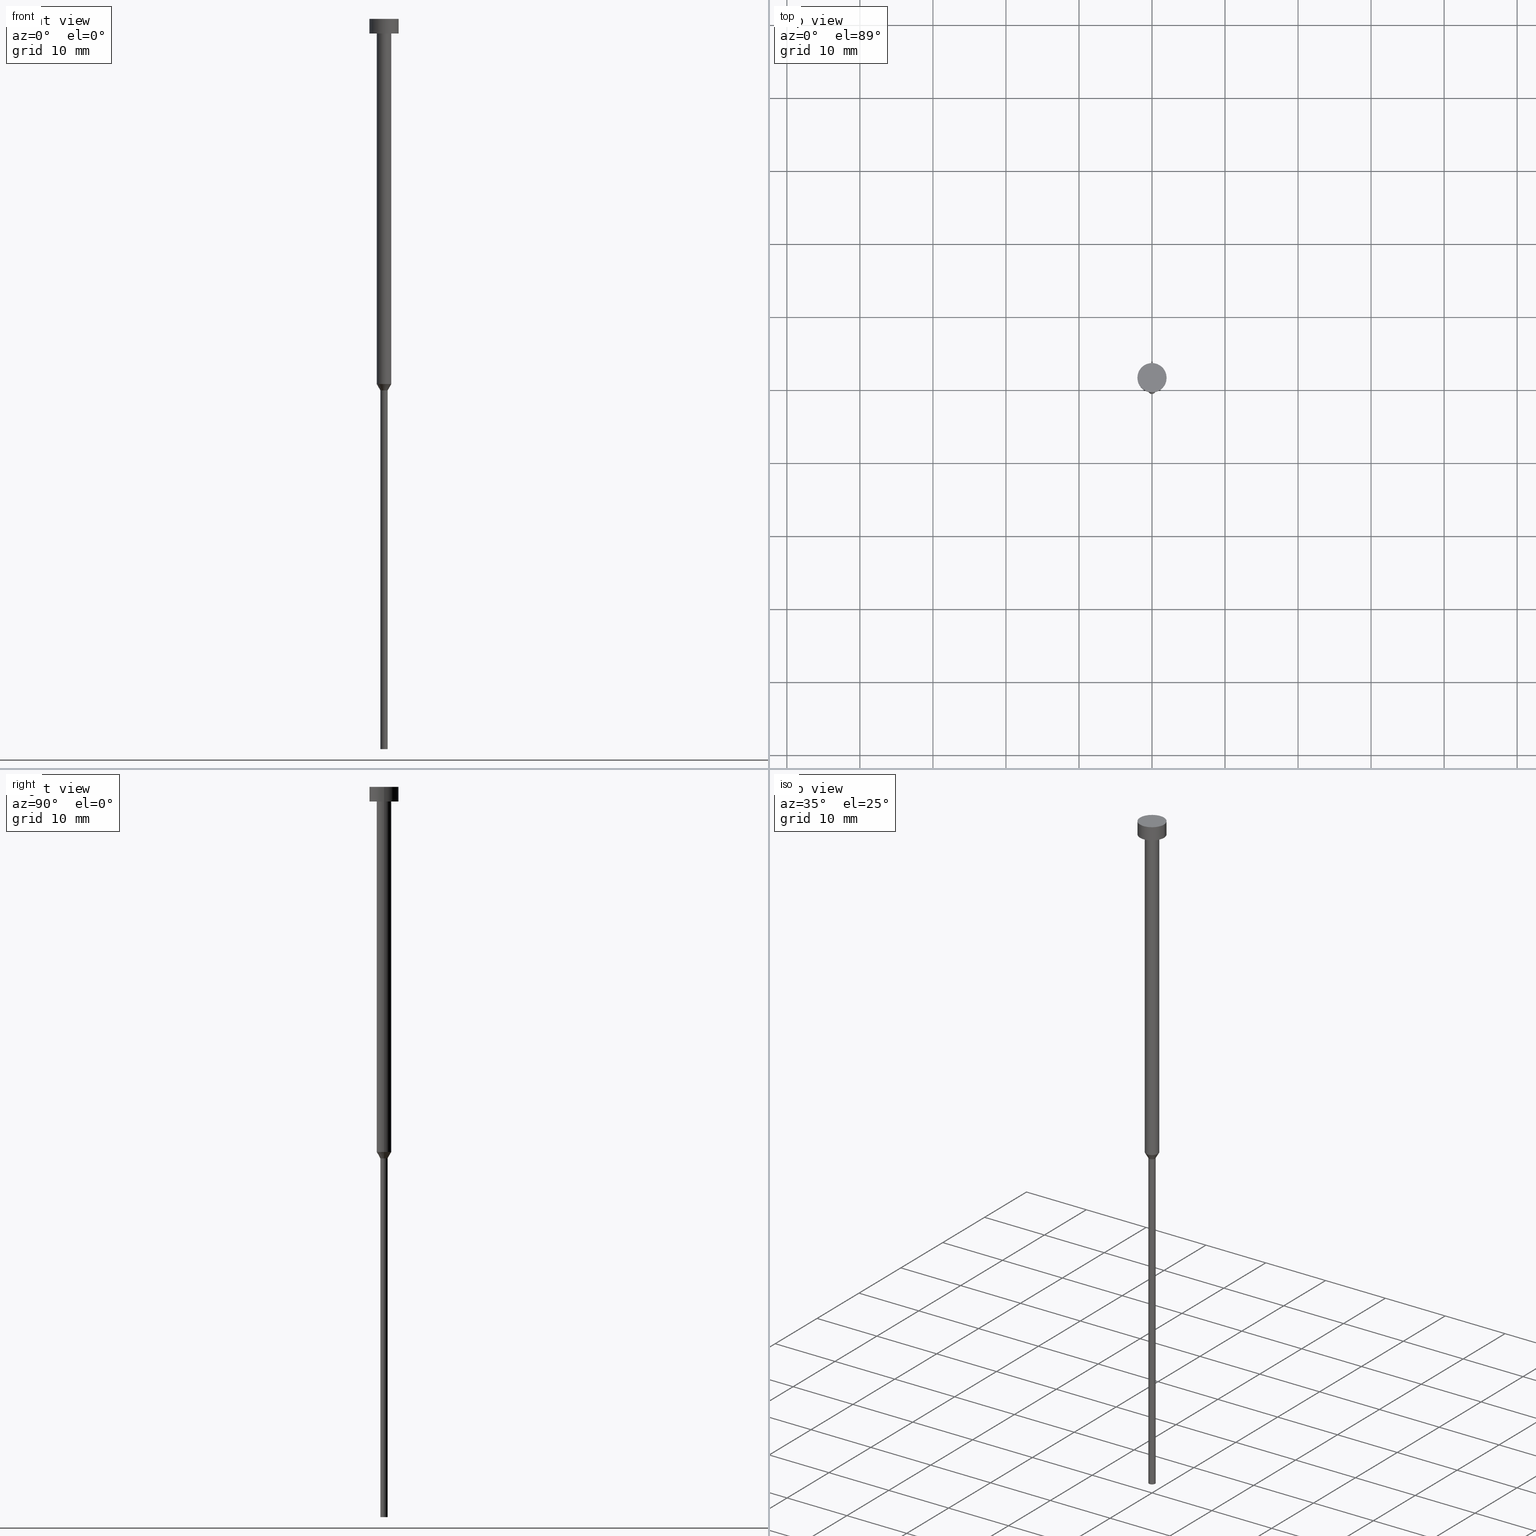
[diagram: canonical four-view strip — front | top / right | iso, engineering-drawing reading convention]
A machine part, canonical four-view strip (front | top / right | iso — engineering-drawing reading convention). The complete STEP part file that produces these views, byte-faithful:
ISO-10303-21;
HEADER;
FILE_DESCRIPTION (( 'STEP AP203' ),
    '1' );
FILE_NAME ('4fe4.STEP',
    '2023-02-13T12:41:08',
    ( '' ),
    ( '' ),
    'SwSTEP 2.0',
    'SolidWorks 2019',
    '' );
FILE_SCHEMA (( 'CONFIG_CONTROL_DESIGN' ));
ENDSEC;

DATA;
#1 =( NAMED_UNIT ( * ) PLANE_ANGLE_UNIT ( ) SI_UNIT ( $, .RADIAN. ) );
#2 = CIRCLE ( 'NONE', #113, 1.000000000000003109 ) ;
#3 = CARTESIAN_POINT ( 'NONE',  ( 0.000000000000000000, 0.000000000000000000, -2.000000000000000444 ) ) ;
#4 = DIRECTION ( 'NONE',  ( 1.000000000000000000, 0.000000000000000000, 0.000000000000000000 ) ) ;
#5 = PERSON_AND_ORGANIZATION ( #53, #118 ) ;
#6 = CARTESIAN_POINT ( 'NONE',  ( -0.5000000000000000000, 6.123233995736766036E-17, -50.86602540378444814 ) ) ;
#7 = DATE_AND_TIME ( #329, #82 ) ;
#8 = EDGE_CURVE ( 'NONE', #125, #93, #2, .T. ) ;
#9 = FACE_OUTER_BOUND ( 'NONE', #156, .T. ) ;
#10 = DIRECTION ( 'NONE',  ( -0.000000000000000000, -0.000000000000000000, 1.000000000000000000 ) ) ;
#11 = EDGE_CURVE ( 'NONE', #203, #93, #208, .T. ) ;
#12 = CIRCLE ( 'NONE', #80, 1.000000000000003553 ) ;
#13 = ORIENTED_EDGE ( 'NONE', *, *, #94, .T. ) ;
#14 = DIRECTION ( 'NONE',  ( 0.000000000000000000, 0.000000000000000000, -1.000000000000000000 ) ) ;
#15 = EDGE_CURVE ( 'NONE', #203, #196, #254, .T. ) ;
#16 = ORIENTED_EDGE ( 'NONE', *, *, #115, .F. ) ;
#17 = DIRECTION ( 'NONE',  ( 1.000000000000000000, 0.000000000000000000, 0.000000000000000000 ) ) ;
#18 = DIRECTION ( 'NONE',  ( -1.000000000000000000, 0.000000000000000000, -0.000000000000000000 ) ) ;
#19 = CARTESIAN_POINT ( 'NONE',  ( -1.000000000000003553, 1.224646799147357398E-16, -2.000000000000000444 ) ) ;
#20 = AXIS2_PLACEMENT_3D ( 'NONE', #157, #270, #22 ) ;
#21 = VERTEX_POINT ( 'NONE', #297 ) ;
#22 = DIRECTION ( 'NONE',  ( 1.000000000000000000, 0.000000000000000000, 0.000000000000000000 ) ) ;
#23 = DIRECTION ( 'NONE',  ( 1.000000000000000000, 0.000000000000000000, 0.000000000000000000 ) ) ;
#24 = CARTESIAN_POINT ( 'NONE',  ( 0.000000000000000000, 0.000000000000000000, -2.000000000000000444 ) ) ;
#25 = DIRECTION ( 'NONE',  ( 1.000000000000000000, 0.000000000000000000, 0.000000000000000000 ) ) ;
#26 = PERSON_AND_ORGANIZATION ( #53, #118 ) ;
#27 = DIRECTION ( 'NONE',  ( -0.000000000000000000, -0.000000000000000000, 1.000000000000000000 ) ) ;
#28 = CARTESIAN_POINT ( 'NONE',  ( 0.000000000000000000, 0.000000000000000000, -100.0000000000000000 ) ) ;
#29 = DATE_TIME_ROLE ( 'creation_date' ) ;
#30 = EDGE_CURVE ( 'NONE', #289, #340, #164, .T. ) ;
#31 = COORDINATED_UNIVERSAL_TIME_OFFSET ( 1, 0, .AHEAD. ) ;
#32 = FACE_OUTER_BOUND ( 'NONE', #299, .T. ) ;
#33 = VECTOR ( 'NONE', #10, 1000.000000000000000 ) ;
#34 = PRODUCT_DEFINITION ( 'NEZN�M�', '', #92, #121 ) ;
#35 = EDGE_LOOP ( 'NONE', ( #16, #13, #272, #348 ) ) ;
#36 = APPROVAL_PERSON_ORGANIZATION ( #163, #51, #166 ) ;
#37 = APPROVAL_DATE_TIME ( #174, #277 ) ;
#38 = ORIENTED_EDGE ( 'NONE', *, *, #152, .T. ) ;
#39 = CARTESIAN_POINT ( 'NONE',  ( 0.000000000000000000, 0.000000000000000000, 0.000000000000000000 ) ) ;
#40 = PRODUCT_RELATED_PRODUCT_CATEGORY ( 'detail', '', ( #141 ) ) ;
#41 = AXIS2_PLACEMENT_3D ( 'NONE', #304, #57, #151 ) ;
#42 = AXIS2_PLACEMENT_3D ( 'NONE', #230, #147, #23 ) ;
#43 = UNCERTAINTY_MEASURE_WITH_UNIT (LENGTH_MEASURE( 1.000000000000000082E-05 ), #107, 'distance_accuracy_value', 'NONE');
#44 = EDGE_CURVE ( 'NONE', #70, #289, #175, .T. ) ;
#45 = EDGE_LOOP ( 'NONE', ( #38, #48 ) ) ;
#46 = AXIS2_PLACEMENT_3D ( 'NONE', #135, #74, #81 ) ;
#47 = DIRECTION ( 'NONE',  ( -0.000000000000000000, -0.000000000000000000, 1.000000000000000000 ) ) ;
#48 = ORIENTED_EDGE ( 'NONE', *, *, #170, .T. ) ;
#49 = CARTESIAN_POINT ( 'NONE',  ( -2.000000000000000000, 2.449293598294706414E-16, 0.000000000000000000 ) ) ;
#50 = LINE ( 'NONE', #247, #290 ) ;
#51 = APPROVAL ( #105, 'NEUR�EN�' ) ;
#52 = PERSON_AND_ORGANIZATION_ROLE ( 'design_supplier' ) ;
#53 = PERSON ( 'NEUR�EN�', 'NEUR�EN�', 'NEUR�EN�', ('NEUR�EN�'), ('NEUR�EN�'), ('NEUR�EN�') ) ;
#54 = CIRCLE ( 'NONE', #64, 1.000000000000003553 ) ;
#55 = CARTESIAN_POINT ( 'NONE',  ( 0.000000000000000000, 0.000000000000000000, -2.449293598294705921E-16 ) ) ;
#56 = DIRECTION ( 'NONE',  ( 0.000000000000000000, 0.000000000000000000, -1.000000000000000000 ) ) ;
#57 = DIRECTION ( 'NONE',  ( -0.000000000000000000, -0.000000000000000000, 1.000000000000000000 ) ) ;
#58 = DIRECTION ( 'NONE',  ( 1.000000000000000000, 0.000000000000000000, 0.000000000000000000 ) ) ;
#59 = CIRCLE ( 'NONE', #260, 0.5000000000000000000 ) ;
#60 = CIRCLE ( 'NONE', #256, 0.5000000000000000000 ) ;
#61 = COORDINATED_UNIVERSAL_TIME_OFFSET ( 1, 0, .AHEAD. ) ;
#62 = ORIENTED_EDGE ( 'NONE', *, *, #8, .T. ) ;
#63 = CALENDAR_DATE ( 2023, 13, 2 ) ;
#64 = AXIS2_PLACEMENT_3D ( 'NONE', #3, #111, #86 ) ;
#65 = EDGE_CURVE ( 'NONE', #125, #321, #302, .T. ) ;
#66 = ORIENTED_EDGE ( 'NONE', *, *, #246, .T. ) ;
#67 = AXIS2_PLACEMENT_3D ( 'NONE', #237, #14, #18 ) ;
#68 = SHAPE_DEFINITION_REPRESENTATION ( #139, #344 ) ;
#69 = CC_DESIGN_PERSON_AND_ORGANIZATION_ASSIGNMENT ( #146, #257, ( #34 ) ) ;
#70 = VERTEX_POINT ( 'NONE', #134 ) ;
#71 = ORIENTED_EDGE ( 'NONE', *, *, #65, .F. ) ;
#72 = CALENDAR_DATE ( 2023, 13, 2 ) ;
#73 = CIRCLE ( 'NONE', #41, 1.000000000000003109 ) ;
#74 = DIRECTION ( 'NONE',  ( 0.000000000000000000, -0.000000000000000000, 1.000000000000000000 ) ) ;
#75 = LINE ( 'NONE', #353, #343 ) ;
#76 = EDGE_LOOP ( 'NONE', ( #241, #263, #316, #342 ) ) ;
#77 = EDGE_CURVE ( 'NONE', #21, #196, #176, .T. ) ;
#78 = PLANE ( 'NONE',  #158 ) ;
#79 = DATE_AND_TIME ( #283, #291 ) ;
#80 = AXIS2_PLACEMENT_3D ( 'NONE', #349, #100, #286 ) ;
#81 = DIRECTION ( 'NONE',  ( 1.000000000000000000, 0.000000000000000000, 0.000000000000000000 ) ) ;
#82 = LOCAL_TIME ( 13, 41, 8.000000000000000000, #31 ) ;
#83 = CC_DESIGN_PERSON_AND_ORGANIZATION_ASSIGNMENT ( #142, #226, ( #141 ) ) ;
#84 = DIRECTION ( 'NONE',  ( 1.000000000000000000, 0.000000000000000000, 0.000000000000000000 ) ) ;
#85 = MANIFOLD_SOLID_BREP ( 'Rotovat1', #280 ) ;
#86 = DIRECTION ( 'NONE',  ( 1.000000000000000000, 0.000000000000000000, 0.000000000000000000 ) ) ;
#87 = PERSON_AND_ORGANIZATION ( #53, #118 ) ;
#88 = CIRCLE ( 'NONE', #20, 2.000000000000000000 ) ;
#89 = ADVANCED_FACE ( 'NONE', ( #225 ), #199, .T. ) ;
#90 = APPROVAL_STATUS ( 'not_yet_approved' ) ;
#91 = LINE ( 'NONE', #307, #224 ) ;
#92 = PRODUCT_DEFINITION_FORMATION_WITH_SPECIFIED_SOURCE ( 'LIBOVOLN�', '', #141, .NOT_KNOWN. ) ;
#93 = VERTEX_POINT ( 'NONE', #191 ) ;
#94 = EDGE_CURVE ( 'NONE', #93, #125, #73, .T. ) ;
#95 = ORIENTED_EDGE ( 'NONE', *, *, #246, .F. ) ;
#96 = VERTEX_POINT ( 'NONE', #264 ) ;
#97 = APPROVAL_PERSON_ORGANIZATION ( #98, #102, #206 ) ;
#98 = PERSON_AND_ORGANIZATION ( #53, #118 ) ;
#99 = DIRECTION ( 'NONE',  ( 1.000000000000000000, 0.000000000000000000, 0.000000000000000000 ) ) ;
#100 = DIRECTION ( 'NONE',  ( -0.000000000000000000, -0.000000000000000000, 1.000000000000000000 ) ) ;
#101 = VERTEX_POINT ( 'NONE', #19 ) ;
#102 = APPROVAL ( #137, 'NEUR�EN�' ) ;
#103 = CIRCLE ( 'NONE', #219, 0.5000000000000000000 ) ;
#104 = LOCAL_TIME ( 13, 41, 8.000000000000000000, #324 ) ;
#105 = APPROVAL_STATUS ( 'not_yet_approved' ) ;
#106 = LINE ( 'NONE', #218, #33 ) ;
#107 =( LENGTH_UNIT ( ) NAMED_UNIT ( * ) SI_UNIT ( .MILLI., .METRE. ) );
#108 = CARTESIAN_POINT ( 'NONE',  ( 0.000000000000000000, 0.000000000000000000, -100.0000000000000000 ) ) ;
#109 = CONICAL_SURFACE ( 'NONE', #312, 1.000000000000003109, 0.5235987755982994818 ) ;
#110 = CARTESIAN_POINT ( 'NONE',  ( 0.000000000000000000, 0.000000000000000000, 0.000000000000000000 ) ) ;
#111 = DIRECTION ( 'NONE',  ( -0.000000000000000000, -0.000000000000000000, 1.000000000000000000 ) ) ;
#112 = EDGE_CURVE ( 'NONE', #289, #70, #144, .T. ) ;
#113 = AXIS2_PLACEMENT_3D ( 'NONE', #281, #351, #99 ) ;
#114 = APPLICATION_PROTOCOL_DEFINITION ( 'international standard', 'config_control_design', 1994, #228 ) ;
#115 = EDGE_CURVE ( 'NONE', #93, #101, #75, .T. ) ;
#116 = EDGE_LOOP ( 'NONE', ( #311, #327 ) ) ;
#117 = CYLINDRICAL_SURFACE ( 'NONE', #42, 0.5000000000000000000 ) ;
#118 = ORGANIZATION ( 'NEUR�EN�', 'NEUR�EN�', '' ) ;
#119 = ORIENTED_EDGE ( 'NONE', *, *, #233, .T. ) ;
#120 = ORIENTED_EDGE ( 'NONE', *, *, #112, .T. ) ;
#121 = DESIGN_CONTEXT ( 'detailed design', #228, 'design' ) ;
#122 = FACE_OUTER_BOUND ( 'NONE', #238, .T. ) ;
#123 = ADVANCED_FACE ( 'NONE', ( #301 ), #232, .T. ) ;
#124 = AXIS2_PLACEMENT_3D ( 'NONE', #240, #153, #17 ) ;
#125 = VERTEX_POINT ( 'NONE', #204 ) ;
#126 = ORIENTED_EDGE ( 'NONE', *, *, #350, .T. ) ;
#127 = CARTESIAN_POINT ( 'NONE',  ( 0.000000000000000000, 0.000000000000000000, -50.86602540378444814 ) ) ;
#128 = ORIENTED_EDGE ( 'NONE', *, *, #8, .F. ) ;
#129 = CARTESIAN_POINT ( 'NONE',  ( 0.000000000000000000, 0.000000000000000000, 0.000000000000000000 ) ) ;
#130 = PERSON_AND_ORGANIZATION_ROLE ( 'creator' ) ;
#131 = DIRECTION ( 'NONE',  ( -0.000000000000000000, -0.000000000000000000, 1.000000000000000000 ) ) ;
#132 = CARTESIAN_POINT ( 'NONE',  ( 0.000000000000000000, 0.000000000000000000, -50.00000000000000000 ) ) ;
#133 = ORIENTED_EDGE ( 'NONE', *, *, #140, .T. ) ;
#134 = CARTESIAN_POINT ( 'NONE',  ( 2.000000000000000000, 0.000000000000000000, -2.000000000000000444 ) ) ;
#135 = CARTESIAN_POINT ( 'NONE',  ( 0.000000000000000000, 0.000000000000000000, -1.224646799147352961E-16 ) ) ;
#136 = DIRECTION ( 'NONE',  ( 1.000000000000000000, 0.000000000000000000, 0.000000000000000000 ) ) ;
#137 = APPROVAL_STATUS ( 'not_yet_approved' ) ;
#138 = VECTOR ( 'NONE', #27, 1000.000000000000000 ) ;
#139 = PRODUCT_DEFINITION_SHAPE ( 'NONE', 'NONE',  #34 ) ;
#140 = EDGE_CURVE ( 'NONE', #340, #273, #88, .T. ) ;
#141 = PRODUCT ( '4fe4', '4fe4', '', ( #338 ) ) ;
#142 = PERSON_AND_ORGANIZATION ( #53, #118 ) ;
#143 = AXIS2_PLACEMENT_3D ( 'NONE', #306, #335, #25 ) ;
#144 = CIRCLE ( 'NONE', #124, 2.000000000000000000 ) ;
#145 = EDGE_LOOP ( 'NONE', ( #119, #126, #195, #236 ) ) ;
#146 = PERSON_AND_ORGANIZATION ( #53, #118 ) ;
#147 = DIRECTION ( 'NONE',  ( -0.000000000000000000, -0.000000000000000000, 1.000000000000000000 ) ) ;
#148 = EDGE_LOOP ( 'NONE', ( #162, #323, #128, #216 ) ) ;
#149 = AXIS2_PLACEMENT_3D ( 'NONE', #110, #300, #251 ) ;
#150 = ORIENTED_EDGE ( 'NONE', *, *, #188, .T. ) ;
#151 = DIRECTION ( 'NONE',  ( 1.000000000000000000, 0.000000000000000000, 0.000000000000000000 ) ) ;
#152 = EDGE_CURVE ( 'NONE', #321, #101, #12, .T. ) ;
#153 = DIRECTION ( 'NONE',  ( -0.000000000000000000, -0.000000000000000000, 1.000000000000000000 ) ) ;
#154 = CALENDAR_DATE ( 2023, 13, 2 ) ;
#155 = ORIENTED_EDGE ( 'NONE', *, *, #115, .T. ) ;
#156 = EDGE_LOOP ( 'NONE', ( #66, #133 ) ) ;
#157 = CARTESIAN_POINT ( 'NONE',  ( 0.000000000000000000, 0.000000000000000000, -2.449293598294705921E-16 ) ) ;
#158 = AXIS2_PLACEMENT_3D ( 'NONE', #108, #56, #279 ) ;
#159 = CC_DESIGN_PERSON_AND_ORGANIZATION_ASSIGNMENT ( #248, #130, ( #92 ) ) ;
#160 = ORIENTED_EDGE ( 'NONE', *, *, #140, .F. ) ;
#161 = DIRECTION ( 'NONE',  ( -0.000000000000000000, -0.000000000000000000, 1.000000000000000000 ) ) ;
#162 = ORIENTED_EDGE ( 'NONE', *, *, #288, .T. ) ;
#163 = PERSON_AND_ORGANIZATION ( #53, #118 ) ;
#164 = LINE ( 'NONE', #49, #234 ) ;
#165 = FACE_OUTER_BOUND ( 'NONE', #148, .T. ) ;
#166 = APPROVAL_ROLE ( '' ) ;
#167 = AXIS2_PLACEMENT_3D ( 'NONE', #39, #313, #84 ) ;
#168 = COORDINATED_UNIVERSAL_TIME_OFFSET ( 1, 0, .AHEAD. ) ;
#169 = CARTESIAN_POINT ( 'NONE',  ( 0.000000000000000000, 0.000000000000000000, 0.000000000000000000 ) ) ;
#170 = EDGE_CURVE ( 'NONE', #101, #321, #54, .T. ) ;
#171 = DIRECTION ( 'NONE',  ( 0.5000000000000005551, 0.000000000000000000, 0.8660254037844382635 ) ) ;
#172 = EDGE_LOOP ( 'NONE', ( #328, #325 ) ) ;
#173 = ADVANCED_FACE ( 'NONE', ( #331 ), #346, .T. ) ;
#174 = DATE_AND_TIME ( #63, #308 ) ;
#175 = CIRCLE ( 'NONE', #319, 2.000000000000000000 ) ;
#176 = LINE ( 'NONE', #200, #212 ) ;
#177 = FACE_BOUND ( 'NONE', #45, .T. ) ;
#178 = ADVANCED_FACE ( 'NONE', ( #122 ), #336, .T. ) ;
#179 = CC_DESIGN_SECURITY_CLASSIFICATION ( #213, ( #92 ) ) ;
#180 = ORIENTED_EDGE ( 'NONE', *, *, #15, .F. ) ;
#181 = DIRECTION ( 'NONE',  ( 1.000000000000000000, 0.000000000000000000, 0.000000000000000000 ) ) ;
#182 = ORIENTED_EDGE ( 'NONE', *, *, #152, .F. ) ;
#183 = DIRECTION ( 'NONE',  ( 1.000000000000000000, 0.000000000000000000, 0.000000000000000000 ) ) ;
#184 = CARTESIAN_POINT ( 'NONE',  ( -2.000000000000000000, 2.449293598294706414E-16, -2.449293598294705921E-16 ) ) ;
#185 =( NAMED_UNIT ( * ) SI_UNIT ( $, .STERADIAN. ) SOLID_ANGLE_UNIT ( ) );
#186 = APPROVAL_DATE_TIME ( #79, #51 ) ;
#187 = CARTESIAN_POINT ( 'NONE',  ( 0.000000000000000000, 0.000000000000000000, -50.00000000000000000 ) ) ;
#188 = EDGE_CURVE ( 'NONE', #96, #21, #59, .T. ) ;
#189 = CC_DESIGN_APPROVAL ( #277, ( #34 ) ) ;
#190 = DIRECTION ( 'NONE',  ( -0.000000000000000000, -0.000000000000000000, 1.000000000000000000 ) ) ;
#191 = CARTESIAN_POINT ( 'NONE',  ( -1.000000000000003109, 1.224646799147356905E-16, -50.00000000000000000 ) ) ;
#192 = CC_DESIGN_PERSON_AND_ORGANIZATION_ASSIGNMENT ( #26, #52, ( #92 ) ) ;
#193 = VECTOR ( 'NONE', #326, 1000.000000000000114 ) ;
#194 = APPROVAL_ROLE ( '' ) ;
#195 = ORIENTED_EDGE ( 'NONE', *, *, #288, .F. ) ;
#196 = VERTEX_POINT ( 'NONE', #305 ) ;
#197 = CARTESIAN_POINT ( 'NONE',  ( 2.000000000000000000, 0.000000000000000000, -2.449293598294705921E-16 ) ) ;
#198 = AXIS2_PLACEMENT_3D ( 'NONE', #129, #211, #181 ) ;
#199 = CYLINDRICAL_SURFACE ( 'NONE', #167, 0.5000000000000000000 ) ;
#200 = CARTESIAN_POINT ( 'NONE',  ( 0.5000000000000000000, 0.000000000000000000, 0.000000000000000000 ) ) ;
#201 = DIRECTION ( 'NONE',  ( 1.000000000000000000, 0.000000000000000000, 0.000000000000000000 ) ) ;
#202 = DIRECTION ( 'NONE',  ( -0.000000000000000000, -0.000000000000000000, 1.000000000000000000 ) ) ;
#203 = VERTEX_POINT ( 'NONE', #6 ) ;
#204 = CARTESIAN_POINT ( 'NONE',  ( 1.000000000000003109, 0.000000000000000000, -50.00000000000000000 ) ) ;
#205 = CC_DESIGN_PERSON_AND_ORGANIZATION_ASSIGNMENT ( #5, #215, ( #213 ) ) ;
#206 = APPROVAL_ROLE ( '' ) ;
#207 = ORIENTED_EDGE ( 'NONE', *, *, #77, .T. ) ;
#208 = LINE ( 'NONE', #330, #193 ) ;
#209 = DATE_TIME_ROLE ( 'classification_date' ) ;
#210 = ORIENTED_EDGE ( 'NONE', *, *, #44, .T. ) ;
#211 = DIRECTION ( 'NONE',  ( -0.000000000000000000, -0.000000000000000000, 1.000000000000000000 ) ) ;
#212 = VECTOR ( 'NONE', #258, 1000.000000000000000 ) ;
#213 = SECURITY_CLASSIFICATION ( '', '', #245 ) ;
#214 = DIRECTION ( 'NONE',  ( 1.000000000000000000, 0.000000000000000000, 0.000000000000000000 ) ) ;
#215 = PERSON_AND_ORGANIZATION_ROLE ( 'classification_officer' ) ;
#216 = ORIENTED_EDGE ( 'NONE', *, *, #284, .F. ) ;
#217 = ADVANCED_FACE ( 'NONE', ( #165 ), #109, .T. ) ;
#218 = CARTESIAN_POINT ( 'NONE',  ( 2.000000000000000000, 0.000000000000000000, 0.000000000000000000 ) ) ;
#219 = AXIS2_PLACEMENT_3D ( 'NONE', #333, #253, #136 ) ;
#220 = AXIS2_PLACEMENT_3D ( 'NONE', #169, #285, #222 ) ;
#221 = PLANE ( 'NONE',  #46 ) ;
#222 = DIRECTION ( 'NONE',  ( 1.000000000000000000, 0.000000000000000000, 0.000000000000000000 ) ) ;
#223 = ORIENTED_EDGE ( 'NONE', *, *, #30, .F. ) ;
#224 = VECTOR ( 'NONE', #171, 1000.000000000000114 ) ;
#225 = FACE_OUTER_BOUND ( 'NONE', #145, .T. ) ;
#226 = PERSON_AND_ORGANIZATION_ROLE ( 'design_owner' ) ;
#227 = ORIENTED_EDGE ( 'NONE', *, *, #350, .F. ) ;
#228 = APPLICATION_CONTEXT ( 'configuration controlled 3d designs of mechanical parts and assemblies' ) ;
#229 = AXIS2_PLACEMENT_3D ( 'NONE', #55, #190, #214 ) ;
#230 = CARTESIAN_POINT ( 'NONE',  ( 0.000000000000000000, 0.000000000000000000, 0.000000000000000000 ) ) ;
#231 = CC_DESIGN_DATE_AND_TIME_ASSIGNMENT ( #314, #29, ( #34 ) ) ;
#232 = CYLINDRICAL_SURFACE ( 'NONE', #345, 1.000000000000003331 ) ;
#233 = EDGE_CURVE ( 'NONE', #21, #96, #103, .T. ) ;
#234 = VECTOR ( 'NONE', #161, 1000.000000000000000 ) ;
#235 = DIRECTION ( 'NONE',  ( 1.000000000000000000, 0.000000000000000000, 0.000000000000000000 ) ) ;
#236 = ORIENTED_EDGE ( 'NONE', *, *, #77, .F. ) ;
#237 = CARTESIAN_POINT ( 'NONE',  ( 0.000000000000000000, -2.000000000000000000, -2.000000000000000444 ) ) ;
#238 = EDGE_LOOP ( 'NONE', ( #223, #120, #347, #160 ) ) ;
#239 = ORIENTED_EDGE ( 'NONE', *, *, #265, .F. ) ;
#240 = CARTESIAN_POINT ( 'NONE',  ( 0.000000000000000000, 0.000000000000000000, -2.000000000000000444 ) ) ;
#241 = ORIENTED_EDGE ( 'NONE', *, *, #11, .F. ) ;
#242 = DIRECTION ( 'NONE',  ( -0.000000000000000000, -0.000000000000000000, 1.000000000000000000 ) ) ;
#243 = COORDINATED_UNIVERSAL_TIME_OFFSET ( 1, 0, .AHEAD. ) ;
#244 = APPROVAL_PERSON_ORGANIZATION ( #87, #277, #194 ) ;
#245 = SECURITY_CLASSIFICATION_LEVEL ( 'unclassified' ) ;
#246 = EDGE_CURVE ( 'NONE', #273, #340, #287, .T. ) ;
#247 = CARTESIAN_POINT ( 'NONE',  ( -0.5000000000000000000, 6.123233995736766036E-17, 0.000000000000000000 ) ) ;
#248 = PERSON_AND_ORGANIZATION ( #53, #118 ) ;
#249 = DIRECTION ( 'NONE',  ( -0.000000000000000000, -0.000000000000000000, 1.000000000000000000 ) ) ;
#250 = FACE_OUTER_BOUND ( 'NONE', #172, .T. ) ;
#251 = DIRECTION ( 'NONE',  ( 1.000000000000000000, 0.000000000000000000, 0.000000000000000000 ) ) ;
#252 = ADVANCED_FACE ( 'NONE', ( #250 ), #78, .T. ) ;
#253 = DIRECTION ( 'NONE',  ( -0.000000000000000000, -0.000000000000000000, 1.000000000000000000 ) ) ;
#254 = CIRCLE ( 'NONE', #295, 0.5000000000000000000 ) ;
#255 =( GEOMETRIC_REPRESENTATION_CONTEXT ( 3 ) GLOBAL_UNCERTAINTY_ASSIGNED_CONTEXT ( ( #43 ) ) GLOBAL_UNIT_ASSIGNED_CONTEXT ( ( #107, #1, #185 ) ) REPRESENTATION_CONTEXT ( 'NONE', 'WORKASPACE' ) );
#256 = AXIS2_PLACEMENT_3D ( 'NONE', #127, #317, #201 ) ;
#257 = PERSON_AND_ORGANIZATION_ROLE ( 'creator' ) ;
#258 = DIRECTION ( 'NONE',  ( -0.000000000000000000, -0.000000000000000000, 1.000000000000000000 ) ) ;
#259 = PLANE ( 'NONE',  #67 ) ;
#260 = AXIS2_PLACEMENT_3D ( 'NONE', #28, #276, #354 ) ;
#261 = CC_DESIGN_APPROVAL ( #51, ( #92 ) ) ;
#262 = CARTESIAN_POINT ( 'NONE',  ( 0.000000000000000000, 0.000000000000000000, 0.000000000000000000 ) ) ;
#263 = ORIENTED_EDGE ( 'NONE', *, *, #15, .T. ) ;
#264 = CARTESIAN_POINT ( 'NONE',  ( -0.5000000000000000000, 6.123233995736766036E-17, -100.0000000000000000 ) ) ;
#265 = EDGE_CURVE ( 'NONE', #70, #273, #106, .T. ) ;
#266 = FACE_OUTER_BOUND ( 'NONE', #116, .T. ) ;
#267 = DIRECTION ( 'NONE',  ( -0.000000000000000000, -0.000000000000000000, 1.000000000000000000 ) ) ;
#268 = EDGE_LOOP ( 'NONE', ( #62, #155, #182, #71 ) ) ;
#269 = AXIS2_PLACEMENT_3D ( 'NONE', #187, #282, #58 ) ;
#270 = DIRECTION ( 'NONE',  ( -0.000000000000000000, -0.000000000000000000, 1.000000000000000000 ) ) ;
#271 = CC_DESIGN_APPROVAL ( #102, ( #213 ) ) ;
#272 = ORIENTED_EDGE ( 'NONE', *, *, #65, .T. ) ;
#273 = VERTEX_POINT ( 'NONE', #197 ) ;
#274 = FACE_OUTER_BOUND ( 'NONE', #35, .T. ) ;
#275 = DATE_AND_TIME ( #72, #104 ) ;
#276 = DIRECTION ( 'NONE',  ( -0.000000000000000000, -0.000000000000000000, 1.000000000000000000 ) ) ;
#277 = APPROVAL ( #90, 'NEUR�EN�' ) ;
#278 = CARTESIAN_POINT ( 'NONE',  ( 1.000000000000003331, 0.000000000000000000, 0.000000000000000000 ) ) ;
#279 = DIRECTION ( 'NONE',  ( -1.000000000000000000, 0.000000000000000000, -0.000000000000000000 ) ) ;
#280 = CLOSED_SHELL ( 'NONE', ( #341, #123, #217, #89, #252, #298, #173, #309, #293, #178, #332 ) ) ;
#281 = CARTESIAN_POINT ( 'NONE',  ( 0.000000000000000000, 0.000000000000000000, -50.00000000000000000 ) ) ;
#282 = DIRECTION ( 'NONE',  ( -0.000000000000000000, -0.000000000000000000, 1.000000000000000000 ) ) ;
#283 = CALENDAR_DATE ( 2023, 13, 2 ) ;
#284 = EDGE_CURVE ( 'NONE', #196, #125, #91, .T. ) ;
#285 = DIRECTION ( 'NONE',  ( 0.000000000000000000, 0.000000000000000000, 1.000000000000000000 ) ) ;
#286 = DIRECTION ( 'NONE',  ( 1.000000000000000000, 0.000000000000000000, 0.000000000000000000 ) ) ;
#287 = CIRCLE ( 'NONE', #229, 2.000000000000000000 ) ;
#288 = EDGE_CURVE ( 'NONE', #196, #203, #60, .T. ) ;
#289 = VERTEX_POINT ( 'NONE', #292 ) ;
#290 = VECTOR ( 'NONE', #249, 1000.000000000000000 ) ;
#291 = LOCAL_TIME ( 13, 41, 8.000000000000000000, #168 ) ;
#292 = CARTESIAN_POINT ( 'NONE',  ( -2.000000000000000000, 2.449293598294706414E-16, -2.000000000000000444 ) ) ;
#293 = ADVANCED_FACE ( 'NONE', ( #177, #266 ), #259, .T. ) ;
#294 = CARTESIAN_POINT ( 'NONE',  ( 0.000000000000000000, 0.000000000000000000, -50.86602540378444814 ) ) ;
#295 = AXIS2_PLACEMENT_3D ( 'NONE', #294, #47, #183 ) ;
#296 = EDGE_LOOP ( 'NONE', ( #227, #150, #207, #180 ) ) ;
#297 = CARTESIAN_POINT ( 'NONE',  ( 0.5000000000000000000, 0.000000000000000000, -100.0000000000000000 ) ) ;
#298 = ADVANCED_FACE ( 'NONE', ( #315 ), #117, .T. ) ;
#299 = EDGE_LOOP ( 'NONE', ( #210, #310, #95, #239 ) ) ;
#300 = DIRECTION ( 'NONE',  ( -0.000000000000000000, -0.000000000000000000, 1.000000000000000000 ) ) ;
#301 = FACE_OUTER_BOUND ( 'NONE', #268, .T. ) ;
#302 = LINE ( 'NONE', #278, #138 ) ;
#303 = CYLINDRICAL_SURFACE ( 'NONE', #149, 2.000000000000000000 ) ;
#304 = CARTESIAN_POINT ( 'NONE',  ( 0.000000000000000000, 0.000000000000000000, -50.00000000000000000 ) ) ;
#305 = CARTESIAN_POINT ( 'NONE',  ( 0.5000000000000000000, 0.000000000000000000, -50.86602540378444814 ) ) ;
#306 = CARTESIAN_POINT ( 'NONE',  ( 0.000000000000000000, 0.000000000000000000, 0.000000000000000000 ) ) ;
#307 = CARTESIAN_POINT ( 'NONE',  ( 1.000000000000003109, 0.000000000000000000, -50.00000000000000000 ) ) ;
#308 = LOCAL_TIME ( 13, 41, 8.000000000000000000, #61 ) ;
#309 = ADVANCED_FACE ( 'NONE', ( #274 ), #334, .T. ) ;
#310 = ORIENTED_EDGE ( 'NONE', *, *, #30, .T. ) ;
#311 = ORIENTED_EDGE ( 'NONE', *, *, #44, .F. ) ;
#312 = AXIS2_PLACEMENT_3D ( 'NONE', #132, #242, #4 ) ;
#313 = DIRECTION ( 'NONE',  ( -0.000000000000000000, -0.000000000000000000, 1.000000000000000000 ) ) ;
#314 = DATE_AND_TIME ( #154, #339 ) ;
#315 = FACE_OUTER_BOUND ( 'NONE', #296, .T. ) ;
#316 = ORIENTED_EDGE ( 'NONE', *, *, #284, .T. ) ;
#317 = DIRECTION ( 'NONE',  ( -0.000000000000000000, -0.000000000000000000, 1.000000000000000000 ) ) ;
#318 = APPLICATION_CONTEXT ( 'configuration controlled 3d designs of mechanical parts and assemblies' ) ;
#319 = AXIS2_PLACEMENT_3D ( 'NONE', #24, #131, #355 ) ;
#320 = CC_DESIGN_DATE_AND_TIME_ASSIGNMENT ( #7, #209, ( #213 ) ) ;
#321 = VERTEX_POINT ( 'NONE', #352 ) ;
#322 = APPROVAL_DATE_TIME ( #275, #102 ) ;
#323 = ORIENTED_EDGE ( 'NONE', *, *, #11, .T. ) ;
#324 = COORDINATED_UNIVERSAL_TIME_OFFSET ( 1, 0, .AHEAD. ) ;
#325 = ORIENTED_EDGE ( 'NONE', *, *, #188, .F. ) ;
#326 = DIRECTION ( 'NONE',  ( -0.5000000000000005551, 6.123233995736773431E-17, 0.8660254037844382635 ) ) ;
#327 = ORIENTED_EDGE ( 'NONE', *, *, #112, .F. ) ;
#328 = ORIENTED_EDGE ( 'NONE', *, *, #233, .F. ) ;
#329 = CALENDAR_DATE ( 2023, 13, 2 ) ;
#330 = CARTESIAN_POINT ( 'NONE',  ( -1.000000000000003109, 1.224646799147356905E-16, -50.00000000000000000 ) ) ;
#331 = FACE_OUTER_BOUND ( 'NONE', #76, .T. ) ;
#332 = ADVANCED_FACE ( 'NONE', ( #9 ), #221, .T. ) ;
#333 = CARTESIAN_POINT ( 'NONE',  ( 0.000000000000000000, 0.000000000000000000, -100.0000000000000000 ) ) ;
#334 = CYLINDRICAL_SURFACE ( 'NONE', #198, 1.000000000000003331 ) ;
#335 = DIRECTION ( 'NONE',  ( -0.000000000000000000, -0.000000000000000000, 1.000000000000000000 ) ) ;
#336 = CYLINDRICAL_SURFACE ( 'NONE', #143, 2.000000000000000000 ) ;
#337 = APPLICATION_PROTOCOL_DEFINITION ( 'international standard', 'config_control_design', 1994, #318 ) ;
#338 = MECHANICAL_CONTEXT ( 'NONE', #318, 'mechanical' ) ;
#339 = LOCAL_TIME ( 13, 41, 8.000000000000000000, #243 ) ;
#340 = VERTEX_POINT ( 'NONE', #184 ) ;
#341 = ADVANCED_FACE ( 'NONE', ( #32 ), #303, .T. ) ;
#342 = ORIENTED_EDGE ( 'NONE', *, *, #94, .F. ) ;
#343 = VECTOR ( 'NONE', #202, 1000.000000000000000 ) ;
#344 = ADVANCED_BREP_SHAPE_REPRESENTATION ( '4fe4', ( #85, #220 ), #255 ) ;
#345 = AXIS2_PLACEMENT_3D ( 'NONE', #262, #267, #235 ) ;
#346 = CONICAL_SURFACE ( 'NONE', #269, 1.000000000000003109, 0.5235987755982994818 ) ;
#347 = ORIENTED_EDGE ( 'NONE', *, *, #265, .T. ) ;
#348 = ORIENTED_EDGE ( 'NONE', *, *, #170, .F. ) ;
#349 = CARTESIAN_POINT ( 'NONE',  ( 0.000000000000000000, 0.000000000000000000, -2.000000000000000444 ) ) ;
#350 = EDGE_CURVE ( 'NONE', #96, #203, #50, .T. ) ;
#351 = DIRECTION ( 'NONE',  ( -0.000000000000000000, -0.000000000000000000, 1.000000000000000000 ) ) ;
#352 = CARTESIAN_POINT ( 'NONE',  ( 1.000000000000003553, 0.000000000000000000, -2.000000000000000444 ) ) ;
#353 = CARTESIAN_POINT ( 'NONE',  ( -1.000000000000003331, 1.224646799147357151E-16, 0.000000000000000000 ) ) ;
#354 = DIRECTION ( 'NONE',  ( 1.000000000000000000, 0.000000000000000000, 0.000000000000000000 ) ) ;
#355 = DIRECTION ( 'NONE',  ( 1.000000000000000000, 0.000000000000000000, 0.000000000000000000 ) ) ;
ENDSEC;
END-ISO-10303-21;
